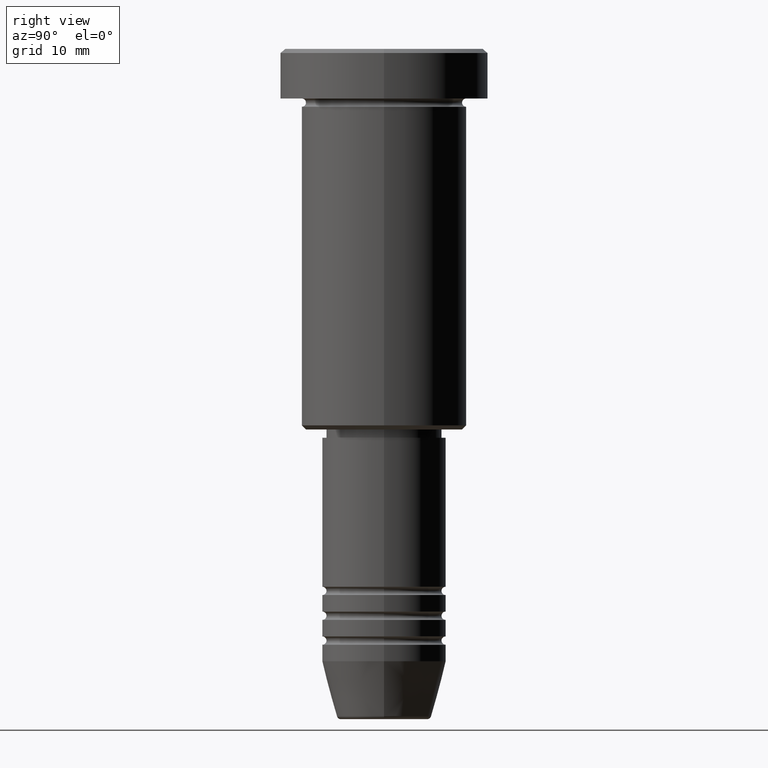
[diagram: clean part render]
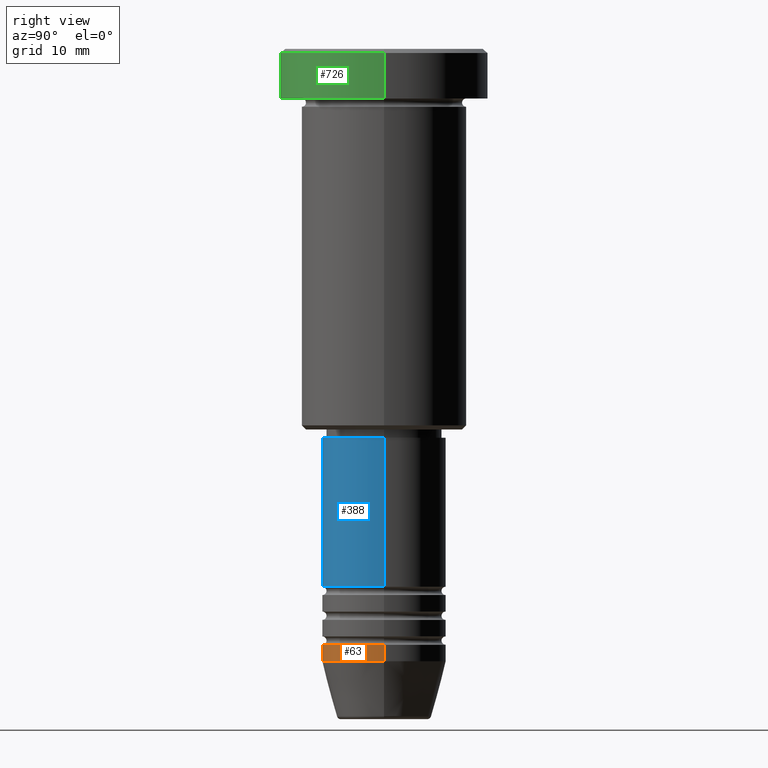
[diagram: same view with three faces highlighted in distinct colors, each labeled with its STEP entity id]
A machine part, right view with three faces highlighted in distinct colors.
Their STEP definitions:

[orange] entity #63 — the highlighted cylindrical surface (partial cylindrical patch) has radius 7.5 mm, axis along (-0, -0, 1).
#37 = CARTESIAN_POINT ( 'NONE',  ( 0.000000000000000000, 0.000000000000000000, -72.00000000000001421 ) ) ;
#63 = ADVANCED_FACE ( 'NONE', ( #657 ), #1017, .T. ) ;
#69 = CIRCLE ( 'NONE', #1082, 7.500000000000000000 ) ;
#79 = EDGE_CURVE ( 'NONE', #1073, #977, #349, .T. ) ;
#122 = DIRECTION ( 'NONE',  ( -0.000000000000000000, -0.000000000000000000, 1.000000000000000000 ) ) ;
#132 = DIRECTION ( 'NONE',  ( 1.000000000000000000, 0.000000000000000000, 0.000000000000000000 ) ) ;
#137 = VERTEX_POINT ( 'NONE', #515 ) ;
#153 = CARTESIAN_POINT ( 'NONE',  ( 7.500000000000000000, 0.000000000000000000, -74.00000000000001421 ) ) ;
#234 = ORIENTED_EDGE ( 'NONE', *, *, #79, .F. ) ;
#244 = EDGE_CURVE ( 'NONE', #619, #137, #363, .T. ) ;
#280 = AXIS2_PLACEMENT_3D ( 'NONE', #688, #1058, #132 ) ;
#310 = CARTESIAN_POINT ( 'NONE',  ( -7.500000000000000000, 9.184850993605147944E-16, -72.00000000000001421 ) ) ;
#340 = ORIENTED_EDGE ( 'NONE', *, *, #703, .F. ) ;
#345 = DIRECTION ( 'NONE',  ( -0.000000000000000000, -0.000000000000000000, 1.000000000000000000 ) ) ;
#349 = LINE ( 'NONE', #543, #1143 ) ;
#363 = LINE ( 'NONE', #472, #1118 ) ;
#472 = CARTESIAN_POINT ( 'NONE',  ( 7.500000000000000000, 0.000000000000000000, 0.000000000000000000 ) ) ;
#502 = DIRECTION ( 'NONE',  ( 1.000000000000000000, 0.000000000000000000, 0.000000000000000000 ) ) ;
#509 = EDGE_LOOP ( 'NONE', ( #234, #764, #759, #340 ) ) ;
#515 = CARTESIAN_POINT ( 'NONE',  ( 7.500000000000000000, 0.000000000000000000, -72.00000000000001421 ) ) ;
#543 = CARTESIAN_POINT ( 'NONE',  ( -7.500000000000000000, 9.184850993605147944E-16, 0.000000000000000000 ) ) ;
#551 = DIRECTION ( 'NONE',  ( -0.000000000000000000, -0.000000000000000000, 1.000000000000000000 ) ) ;
#602 = EDGE_CURVE ( 'NONE', #1073, #619, #1045, .T. ) ;
#619 = VERTEX_POINT ( 'NONE', #153 ) ;
#657 = FACE_OUTER_BOUND ( 'NONE', #509, .T. ) ;
#688 = CARTESIAN_POINT ( 'NONE',  ( 0.000000000000000000, 0.000000000000000000, -74.00000000000001421 ) ) ;
#703 = EDGE_CURVE ( 'NONE', #977, #137, #69, .T. ) ;
#718 = DIRECTION ( 'NONE',  ( -0.000000000000000000, -0.000000000000000000, 1.000000000000000000 ) ) ;
#759 = ORIENTED_EDGE ( 'NONE', *, *, #244, .T. ) ;
#764 = ORIENTED_EDGE ( 'NONE', *, *, #602, .T. ) ;
#977 = VERTEX_POINT ( 'NONE', #310 ) ;
#991 = CARTESIAN_POINT ( 'NONE',  ( -7.500000000000000000, 9.184850993605147944E-16, -74.00000000000001421 ) ) ;
#994 = DIRECTION ( 'NONE',  ( 1.000000000000000000, 0.000000000000000000, 0.000000000000000000 ) ) ;
#995 = AXIS2_PLACEMENT_3D ( 'NONE', #1167, #718, #994 ) ;
#1017 = CYLINDRICAL_SURFACE ( 'NONE', #995, 7.500000000000000000 ) ;
#1045 = CIRCLE ( 'NONE', #280, 7.500000000000000000 ) ;
#1058 = DIRECTION ( 'NONE',  ( -0.000000000000000000, -0.000000000000000000, 1.000000000000000000 ) ) ;
#1073 = VERTEX_POINT ( 'NONE', #991 ) ;
#1082 = AXIS2_PLACEMENT_3D ( 'NONE', #37, #122, #502 ) ;
#1118 = VECTOR ( 'NONE', #551, 1000.000000000000000 ) ;
#1143 = VECTOR ( 'NONE', #345, 1000.000000000000000 ) ;
#1167 = CARTESIAN_POINT ( 'NONE',  ( 0.000000000000000000, 0.000000000000000000, 0.000000000000000000 ) ) ;

[blue] entity #388 — the highlighted cylindrical surface (partial cylindrical patch) has radius 7.5 mm, axis along (-0, -0, 1).
#9 = DIRECTION ( 'NONE',  ( 1.000000000000000000, 0.000000000000000000, 0.000000000000000000 ) ) ;
#11 = EDGE_CURVE ( 'NONE', #441, #1089, #104, .T. ) ;
#16 = CYLINDRICAL_SURFACE ( 'NONE', #928, 7.500000000000000000 ) ;
#34 = ORIENTED_EDGE ( 'NONE', *, *, #201, .T. ) ;
#87 = CARTESIAN_POINT ( 'NONE',  ( 0.000000000000000000, 0.000000000000000000, 0.000000000000000000 ) ) ;
#89 = CARTESIAN_POINT ( 'NONE',  ( 7.500000000000000000, 0.000000000000000000, 0.000000000000000000 ) ) ;
#94 = FACE_OUTER_BOUND ( 'NONE', #1154, .T. ) ;
#104 = LINE ( 'NONE', #89, #479 ) ;
#120 = DIRECTION ( 'NONE',  ( 1.000000000000000000, 0.000000000000000000, 0.000000000000000000 ) ) ;
#199 = DIRECTION ( 'NONE',  ( -0.000000000000000000, -0.000000000000000000, 1.000000000000000000 ) ) ;
#201 = EDGE_CURVE ( 'NONE', #506, #441, #1018, .T. ) ;
#226 = ORIENTED_EDGE ( 'NONE', *, *, #867, .F. ) ;
#250 = DIRECTION ( 'NONE',  ( 1.000000000000000000, 0.000000000000000000, 0.000000000000000000 ) ) ;
#296 = VECTOR ( 'NONE', #482, 1000.000000000000000 ) ;
#369 = AXIS2_PLACEMENT_3D ( 'NONE', #973, #424, #250 ) ;
#377 = CARTESIAN_POINT ( 'NONE',  ( -7.500000000000000000, 9.184850993605147944E-16, 0.000000000000000000 ) ) ;
#388 = ADVANCED_FACE ( 'NONE', ( #94 ), #16, .T. ) ;
#420 = EDGE_CURVE ( 'NONE', #506, #812, #1021, .T. ) ;
#421 = CARTESIAN_POINT ( 'NONE',  ( 7.500000000000000000, 0.000000000000000000, -47.00000000000001421 ) ) ;
#424 = DIRECTION ( 'NONE',  ( -0.000000000000000000, -0.000000000000000000, 1.000000000000000000 ) ) ;
#441 = VERTEX_POINT ( 'NONE', #648 ) ;
#463 = DIRECTION ( 'NONE',  ( -0.000000000000000000, -0.000000000000000000, 1.000000000000000000 ) ) ;
#479 = VECTOR ( 'NONE', #463, 1000.000000000000000 ) ;
#482 = DIRECTION ( 'NONE',  ( -0.000000000000000000, -0.000000000000000000, 1.000000000000000000 ) ) ;
#505 = CARTESIAN_POINT ( 'NONE',  ( 0.000000000000000000, 0.000000000000000000, -47.00000000000001421 ) ) ;
#506 = VERTEX_POINT ( 'NONE', #767 ) ;
#648 = CARTESIAN_POINT ( 'NONE',  ( 7.500000000000000000, 0.000000000000000000, -64.99999999999998579 ) ) ;
#697 = ORIENTED_EDGE ( 'NONE', *, *, #420, .F. ) ;
#767 = CARTESIAN_POINT ( 'NONE',  ( -7.500000000000000000, 9.184850993605147944E-16, -64.99999999999998579 ) ) ;
#812 = VERTEX_POINT ( 'NONE', #843 ) ;
#840 = CIRCLE ( 'NONE', #1008, 7.500000000000000000 ) ;
#843 = CARTESIAN_POINT ( 'NONE',  ( -7.500000000000000000, 9.184850993605147944E-16, -47.00000000000001421 ) ) ;
#867 = EDGE_CURVE ( 'NONE', #812, #1089, #840, .T. ) ;
#928 = AXIS2_PLACEMENT_3D ( 'NONE', #87, #1110, #9 ) ;
#973 = CARTESIAN_POINT ( 'NONE',  ( 0.000000000000000000, 0.000000000000000000, -64.99999999999998579 ) ) ;
#1008 = AXIS2_PLACEMENT_3D ( 'NONE', #505, #199, #120 ) ;
#1018 = CIRCLE ( 'NONE', #369, 7.500000000000000000 ) ;
#1021 = LINE ( 'NONE', #377, #296 ) ;
#1089 = VERTEX_POINT ( 'NONE', #421 ) ;
#1110 = DIRECTION ( 'NONE',  ( -0.000000000000000000, -0.000000000000000000, 1.000000000000000000 ) ) ;
#1154 = EDGE_LOOP ( 'NONE', ( #697, #34, #1159, #226 ) ) ;
#1159 = ORIENTED_EDGE ( 'NONE', *, *, #11, .T. ) ;

[green] entity #726 — the highlighted cylindrical surface (partial cylindrical patch) has radius 12.5 mm, axis along (-0, -0, 1).
#1 = ORIENTED_EDGE ( 'NONE', *, *, #1141, .T. ) ;
#72 = DIRECTION ( 'NONE',  ( 1.000000000000000000, 0.000000000000000000, 0.000000000000000000 ) ) ;
#98 = VECTOR ( 'NONE', #1049, 1000.000000000000000 ) ;
#101 = CIRCLE ( 'NONE', #722, 12.50000000000000000 ) ;
#146 = CARTESIAN_POINT ( 'NONE',  ( 12.50000000000000000, 0.000000000000000000, -5.999999999999996447 ) ) ;
#332 = CARTESIAN_POINT ( 'NONE',  ( 0.000000000000000000, 0.000000000000000000, -0.5000000000000056621 ) ) ;
#342 = DIRECTION ( 'NONE',  ( 1.000000000000000000, 0.000000000000000000, 0.000000000000000000 ) ) ;
#354 = EDGE_CURVE ( 'NONE', #614, #1147, #464, .T. ) ;
#371 = ORIENTED_EDGE ( 'NONE', *, *, #880, .F. ) ;
#403 = LINE ( 'NONE', #939, #98 ) ;
#410 = DIRECTION ( 'NONE',  ( -0.000000000000000000, -0.000000000000000000, 1.000000000000000000 ) ) ;
#443 = CARTESIAN_POINT ( 'NONE',  ( -12.50000000000000000, 1.530808498934191521E-15, -0.5000000000000056621 ) ) ;
#464 = LINE ( 'NONE', #1014, #944 ) ;
#469 = DIRECTION ( 'NONE',  ( -0.000000000000000000, -0.000000000000000000, 1.000000000000000000 ) ) ;
#476 = AXIS2_PLACEMENT_3D ( 'NONE', #332, #607, #72 ) ;
#497 = DIRECTION ( 'NONE',  ( 1.000000000000000000, 0.000000000000000000, 0.000000000000000000 ) ) ;
#519 = ORIENTED_EDGE ( 'NONE', *, *, #354, .T. ) ;
#520 = CARTESIAN_POINT ( 'NONE',  ( 0.000000000000000000, 0.000000000000000000, -5.999999999999996447 ) ) ;
#607 = DIRECTION ( 'NONE',  ( 0.000000000000000000, 0.000000000000000000, -1.000000000000000000 ) ) ;
#610 = DIRECTION ( 'NONE',  ( -0.000000000000000000, -0.000000000000000000, 1.000000000000000000 ) ) ;
#614 = VERTEX_POINT ( 'NONE', #146 ) ;
#616 = EDGE_CURVE ( 'NONE', #869, #614, #101, .T. ) ;
#670 = CARTESIAN_POINT ( 'NONE',  ( 0.000000000000000000, 0.000000000000000000, 0.000000000000000000 ) ) ;
#679 = FACE_OUTER_BOUND ( 'NONE', #1053, .T. ) ;
#722 = AXIS2_PLACEMENT_3D ( 'NONE', #520, #610, #342 ) ;
#726 = ADVANCED_FACE ( 'NONE', ( #679 ), #762, .T. ) ;
#762 = CYLINDRICAL_SURFACE ( 'NONE', #1139, 12.50000000000000000 ) ;
#869 = VERTEX_POINT ( 'NONE', #1120 ) ;
#880 = EDGE_CURVE ( 'NONE', #869, #1050, #403, .T. ) ;
#939 = CARTESIAN_POINT ( 'NONE',  ( -12.50000000000000000, 1.530808498934191521E-15, 0.000000000000000000 ) ) ;
#944 = VECTOR ( 'NONE', #469, 1000.000000000000000 ) ;
#947 = CIRCLE ( 'NONE', #476, 12.50000000000000000 ) ;
#1014 = CARTESIAN_POINT ( 'NONE',  ( 12.50000000000000000, 0.000000000000000000, 0.000000000000000000 ) ) ;
#1049 = DIRECTION ( 'NONE',  ( -0.000000000000000000, -0.000000000000000000, 1.000000000000000000 ) ) ;
#1050 = VERTEX_POINT ( 'NONE', #443 ) ;
#1053 = EDGE_LOOP ( 'NONE', ( #371, #1140, #519, #1 ) ) ;
#1078 = CARTESIAN_POINT ( 'NONE',  ( 12.50000000000000000, 0.000000000000000000, -0.5000000000000056621 ) ) ;
#1120 = CARTESIAN_POINT ( 'NONE',  ( -12.50000000000000000, 1.530808498934191521E-15, -5.999999999999996447 ) ) ;
#1139 = AXIS2_PLACEMENT_3D ( 'NONE', #670, #410, #497 ) ;
#1140 = ORIENTED_EDGE ( 'NONE', *, *, #616, .T. ) ;
#1141 = EDGE_CURVE ( 'NONE', #1147, #1050, #947, .T. ) ;
#1147 = VERTEX_POINT ( 'NONE', #1078 ) ;